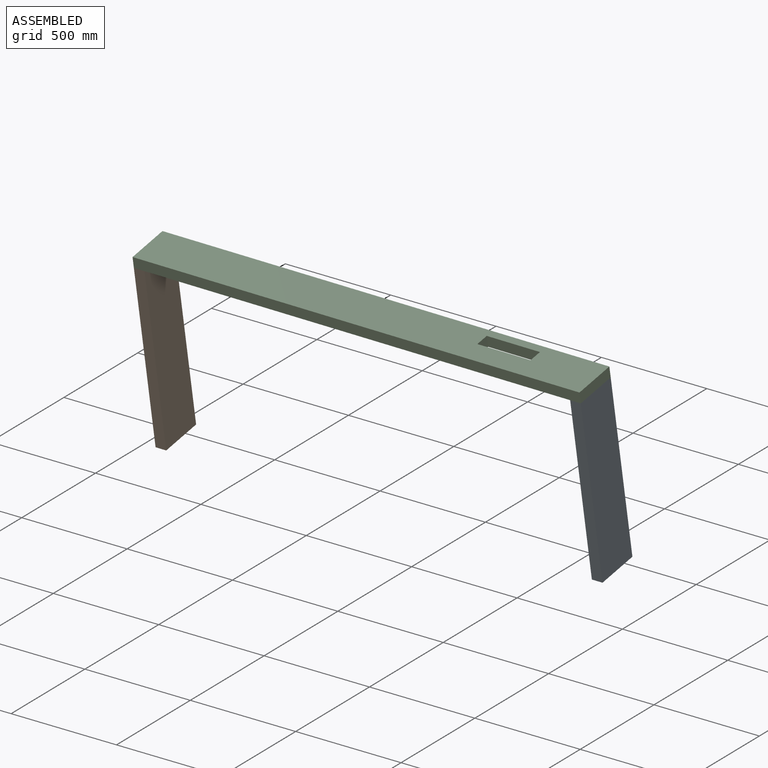
[diagram: assembled view]
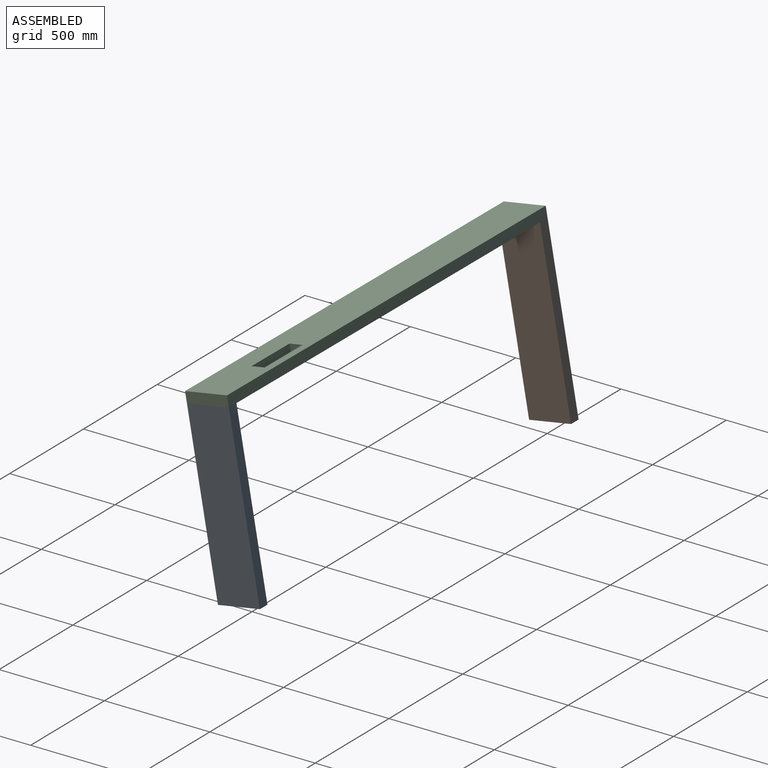
[diagram: assembled view, second angle]
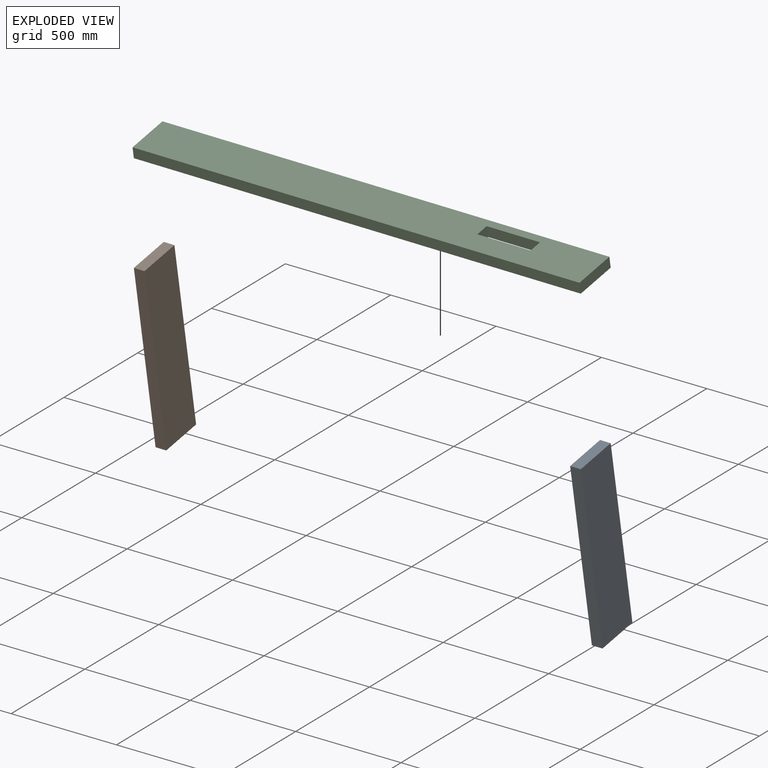
[diagram: exploded view]
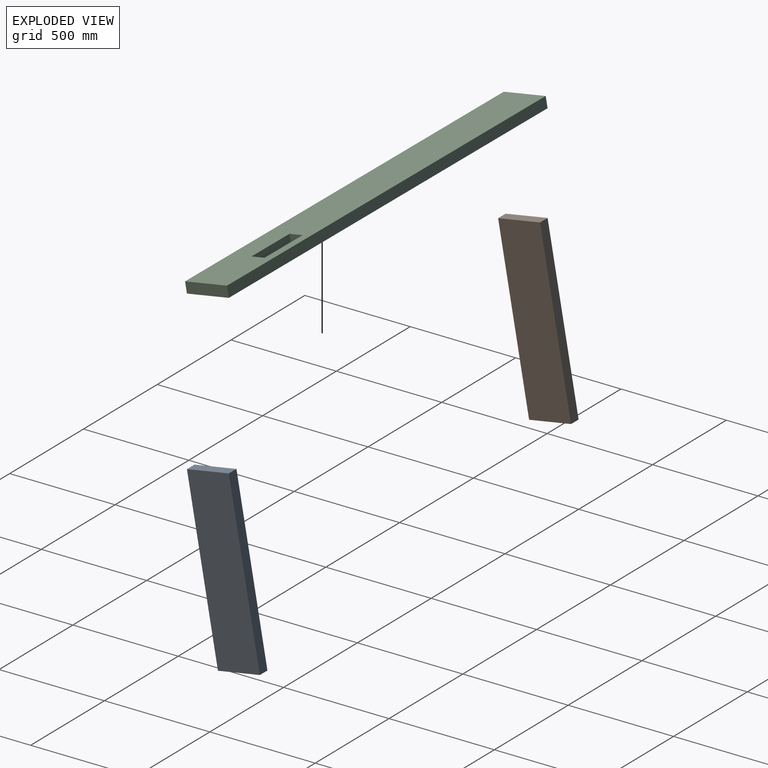
[diagram: exploded view, second angle]
ASSEMBLY  parts=3 mates=2
PART A: 6 faces, bbox 50.8x203.2x838.2 mm
  f0: plane 838.2x50.8mm, normal (0,1,0), area 42580.6mm2, adj f1,f3,f4,f5
  f1: plane 203.2x50.8mm, normal (0,0,1), area 10322.6mm2, adj f0,f2,f4,f5
  f2: plane 838.2x50.8mm, normal (0,-1,0), area 42580.6mm2, adj f1,f3,f4,f5
  f3: plane 203.2x50.8mm, normal (0,0,-1), area 10322.6mm2, adj f0,f2,f4,f5
  f4: plane 838.2x203.2mm, normal (1,0,0), area 170322.2mm2, adj f0,f1,f2,f3
  f5: plane 838.2x203.2mm, normal (-1,0,0), area 170322.2mm2, adj f0,f1,f2,f3
PART B: same geometry as A
PART C: 10 faces, bbox 2133.6x50.8x203.2 mm
  f0: plane 254x50.8mm, normal (0,0,1), area 12903.2mm2, adj f1,f7,f8,f9
  f1: plane 63.5x50.8mm, normal (1,0,0), area 3225.8mm2, adj f0,f2,f8,f9
  f2: plane 254x50.8mm, normal (0,0,-1), area 12903.2mm2, adj f1,f7,f8,f9
  f3: plane 203.2x50.8mm, normal (1,0,0), area 10322.6mm2, adj f4,f6,f8,f9
  f4: plane 2133.6x50.8mm, normal (0,0,1), area 108386.9mm2, adj f3,f5,f8,f9
  f5: plane 203.2x50.8mm, normal (-1,0,0), area 10322.6mm2, adj f4,f6,f8,f9
  f6: plane 2133.6x50.8mm, normal (0,0,-1), area 108386.9mm2, adj f3,f5,f8,f9
  f7: plane 63.5x50.8mm, normal (-1,0,0), area 3225.8mm2, adj f0,f2,f8,f9
  f8: plane 2133.6x203.2mm, normal (0,-1,0), area 417418.5mm2, adj f0,f1,f2,f3,f4,f5,f6,f7
  f9: plane 2133.6x203.2mm, normal (0,1,0), area 417418.5mm2, adj f0,f1,f2,f3,f4,f5,f6,f7
PLACE A rot(axis=(1,0,-0.05),10.1deg) t=(-466.9,-226.33,41.03)mm
PLACE B rot(axis=(1,0,-0.05),10.1deg) t=(-2549.62,-208.26,44.25)mm
PLACE C rot(axis=(-1,0.01,0),79.9deg) t=(-1482.86,-291.09,455.19)mm fixed
MATE fastened A.f1 <-> C.f9  axis (0,-0.18,0.98) through (-416.1,-300.34,453.54)mm
MATE fastened B.f1 <-> C.f9  axis (0,-0.18,0.98) through (-2549.62,-281.84,456.84)mm
